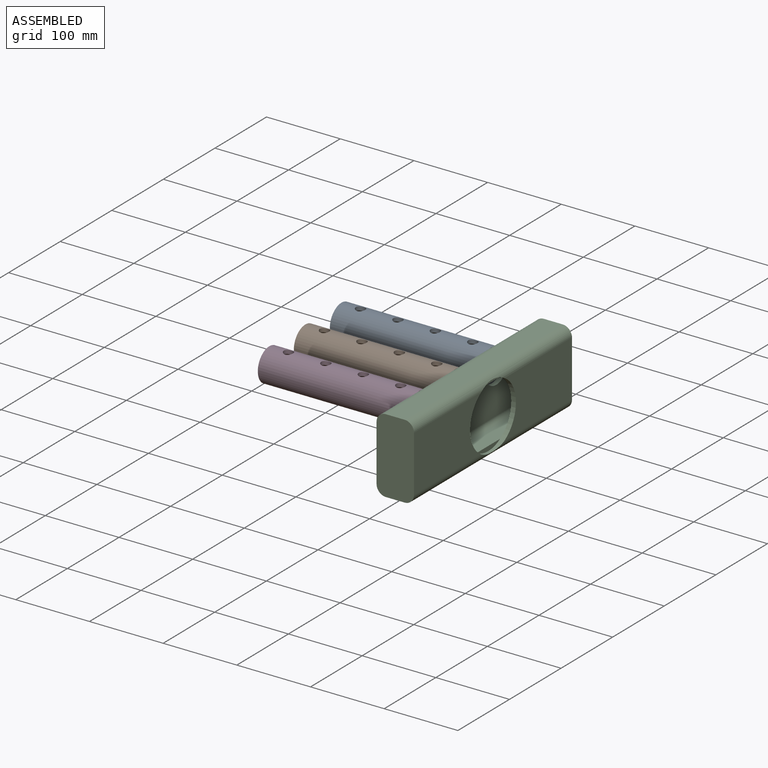
[diagram: assembled view]
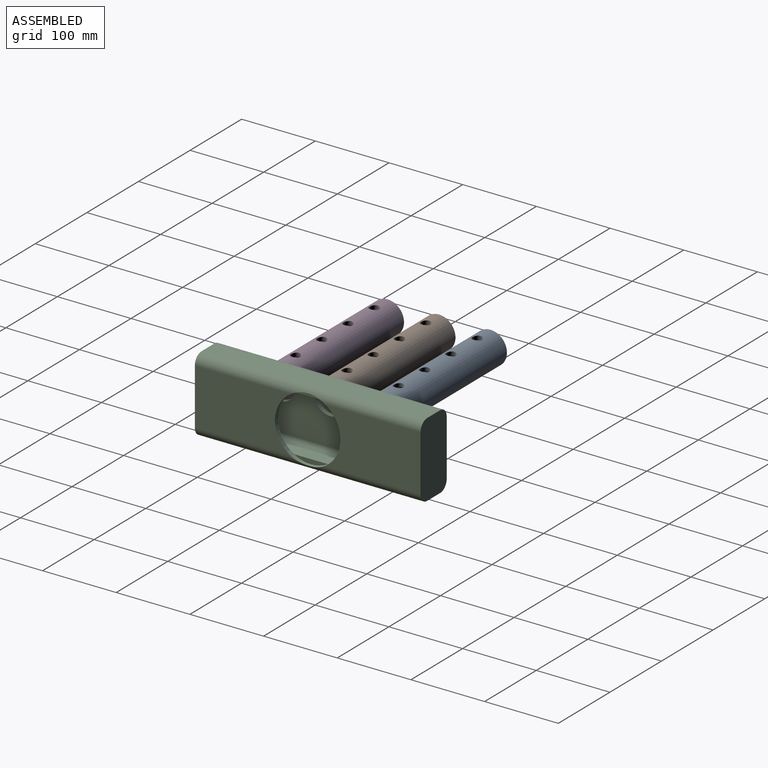
[diagram: assembled view, second angle]
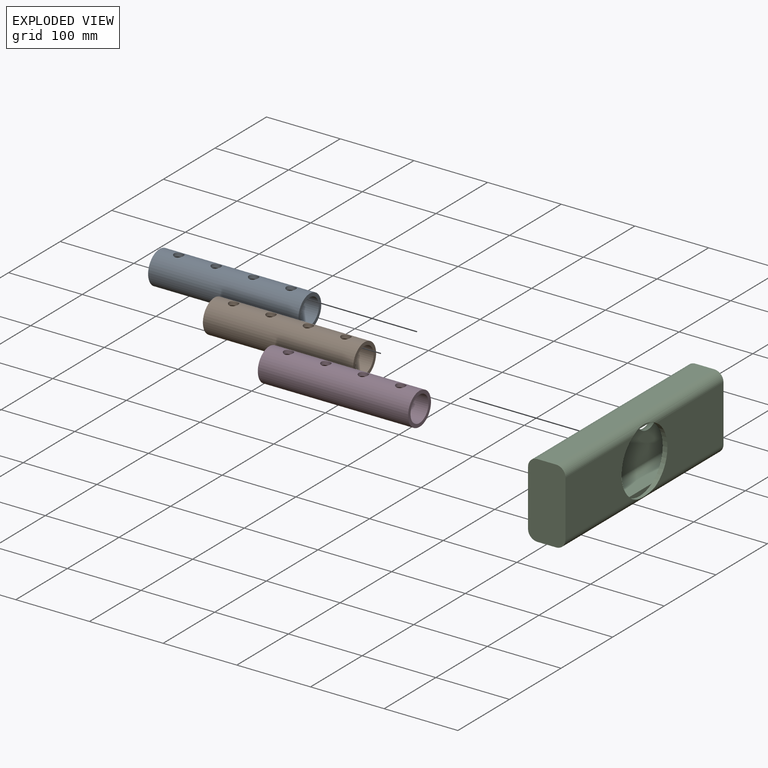
[diagram: exploded view]
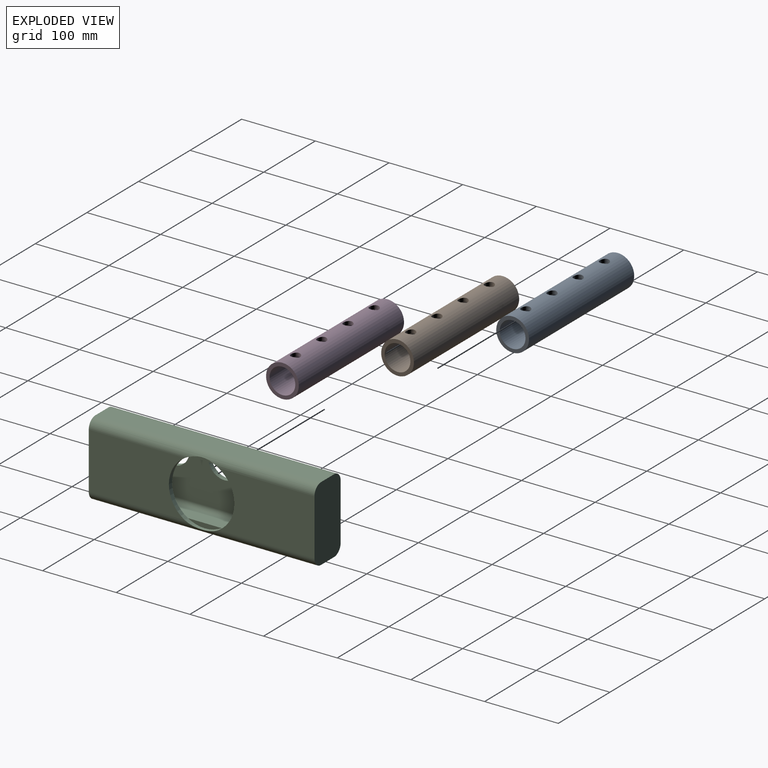
[diagram: exploded view, second angle]
ASSEMBLY  parts=4 mates=3
PART A: 9 faces, bbox 204x44.5x44.5 mm
  f0: cylinder r=17.46mm len=203.2mm, axis (-1,0,0), area 21778.9mm2, adj f2,f3,f4,f5,f6,f7
  f1: cylinder r=22.23mm len=203.96mm, axis (-1,0,0), area 27970mm2, adj f2,f3,f4,f5,f6,f8
  f2: plane 44.45x44.45mm, normal (1,0,0), area 593.8mm2, adj f0,f1
  f3: cylinder r=6.35mm len=12.7mm, axis (0,0,1), area 195.3mm2, adj f0,f1
  f4: cylinder r=6.35mm len=12.7mm, axis (0,0,1), area 195.3mm2, adj f0,f1
  f5: cylinder r=6.35mm len=12.7mm, axis (0,0,1), area 195.3mm2, adj f0,f1
  f6: cylinder r=6.35mm len=12.7mm, axis (0,0,1), area 195.3mm2, adj f0,f1
  f7: plane 34.93x34.93mm, normal (1,0,0), area 958mm2, adj f0
  f8: plane 44.45x44.45mm, normal (-1,0,0), area 1551.8mm2, adj f1
PART B: same geometry as A
PART C: 34 faces, bbox 50.8x306.3x101.6 mm
  f0: plane 129.5x76.2mm, normal (-1,0,0), area 8706.1mm2, adj f9,f10,f28,f32
  f1: plane 129.5x76.2mm, normal (-1,0,0), area 8706.1mm2, adj f9,f10,f28,f30
  f2: plane 130.27x76.2mm, normal (1,0,0), area 8764.2mm2, adj f14,f16,f28,f33
  f3: cylinder r=6.35mm len=82.55mm, axis (0,1,0), area 738.5mm2, adj f6,f11,f23,f26,f32
  f4: cylinder r=6.35mm len=69.85mm, axis (0,1,0), area 526.9mm2, adj f6,f11,f22,f23,f25,f26
  f5: cylinder r=6.35mm len=69.85mm, axis (0,1,0), area 526.9mm2, adj f6,f11,f21,f22,f24,f25
  f6: plane 304.8x76.2mm, normal (1,0,0), area 18978.3mm2, adj f3,f4,f5,f7,f12,f21,f22,f23
  f7: cylinder r=6.35mm len=304.8mm, axis (0,1,0), area 3040.5mm2, adj f6,f8,f30,f32
  f8: plane 304.8x25.4mm, normal (0,0,1), area 7741.9mm2, adj f7,f9,f30,f32
  f9: cylinder r=6.35mm len=304.8mm, axis (0,1,0), area 3040.4mm2, adj f0,f1,f8,f28,f29,f30,f32
  f10: cylinder r=6.35mm len=304.8mm, axis (0,1,0), area 3040.4mm2, adj f0,f1,f11,f27,f28,f30,f32
  f11: plane 304.8x25.4mm, normal (0,0,-1), area 7741.9mm2, adj f3,f4,f5,f10,f12,f24,f25,f26
  f12: cylinder r=6.35mm len=82.55mm, axis (0,1,0), area 738.5mm2, adj f6,f11,f21,f24,f30
  f13: plane 306.32x25.4mm, normal (0,0,1), area 7780.6mm2, adj f14,f20,f31,f33
  f14: cylinder r=12.7mm len=306.32mm, axis (0,1,0), area 5908.4mm2, adj f2,f13,f15,f28,f31,f33
  f15: plane 130.27x76.2mm, normal (1,0,0), area 8764.2mm2, adj f14,f16,f28,f31
  f16: cylinder r=12.7mm len=306.32mm, axis (0,1,0), area 5908.4mm2, adj f2,f15,f17,f28,f31,f33
  f17: plane 306.32x25.4mm, normal (0,0,-1), area 7780.6mm2, adj f16,f18,f31,f33
  f18: cylinder r=12.7mm len=306.32mm, axis (0,1,0), area 6111.4mm2, adj f17,f19,f31,f33
  f19: plane 306.32x76.2mm, normal (-1,0,0), area 19094.5mm2, adj f18,f20,f21,f22,f23,f31,f33
  f20: cylinder r=12.7mm len=306.32mm, axis (0,1,0), area 5690.3mm2, adj f13,f19,f21,f22,f23,f31,f33
  f21: cylinder r=22.23mm len=44.45mm, axis (-1,0,0), area 940.5mm2, adj f5,f6,f12,f19,f20
  f22: cylinder r=22.23mm len=44.45mm, axis (-1,0,0), area 940.5mm2, adj f4,f5,f6,f19,f20
  f23: cylinder r=22.23mm len=44.45mm, axis (-1,0,0), area 940.5mm2, adj f3,f4,f6,f19,f20
  f24: cylinder r=22.23mm len=0.01mm, axis (-1,0,0), area 0mm2, adj f5,f11,f12
  f25: cylinder r=22.23mm len=0.01mm, axis (-1,0,0), area 0mm2, adj f4,f5,f11
  f26: cylinder r=22.23mm len=0.01mm, axis (-1,0,0), area 0mm2, adj f3,f4,f11
  f27: plane 45.78x6.35mm, normal (1,0,0), area 196.7mm2, adj f10,f28
  f28: cylinder r=44.45mm len=88.9mm, axis (1,0,0), area 1688.4mm2, adj f0,f1,f2,f9,f10,f14,f15,f16
  f29: plane 45.78x6.35mm, normal (1,0,0), area 196.7mm2, adj f9,f28
  f30: plane 88.9x38.1mm, normal (0,1,0), area 3352.5mm2, adj f1,f6,f7,f8,f9,f10,f11,f12
  f31: plane 101.6x50.8mm, normal (0,-1,0), area 5022.9mm2, adj f13,f14,f15,f16,f17,f18,f19,f20
  f32: plane 88.9x38.1mm, normal (0,-1,0), area 3352.5mm2, adj f0,f3,f6,f7,f8,f9,f10,f11
  f33: plane 101.6x50.8mm, normal (0,1,0), area 5022.9mm2, adj f2,f13,f14,f16,f17,f18,f19,f20
PART D: same geometry as A
PLACE A t=(-251.43,69.25,19.1)mm
PLACE B t=(-251.43,-0.6,19.1)mm
PLACE C t=(2.57,-0.6,-3.13)mm
PLACE D t=(-251.43,-70.45,19.1)mm
MATE fastened B.f1 <-> C.f22  axis (-1,0,0) through (-22.83,-0.6,19.1)mm
MATE fastened A.f1 <-> C.f23  axis (-1,0,0) through (-22.83,69.25,19.1)mm
MATE fastened D.f1 <-> C.f21  axis (-1,0,0) through (-22.83,-70.45,19.1)mm
